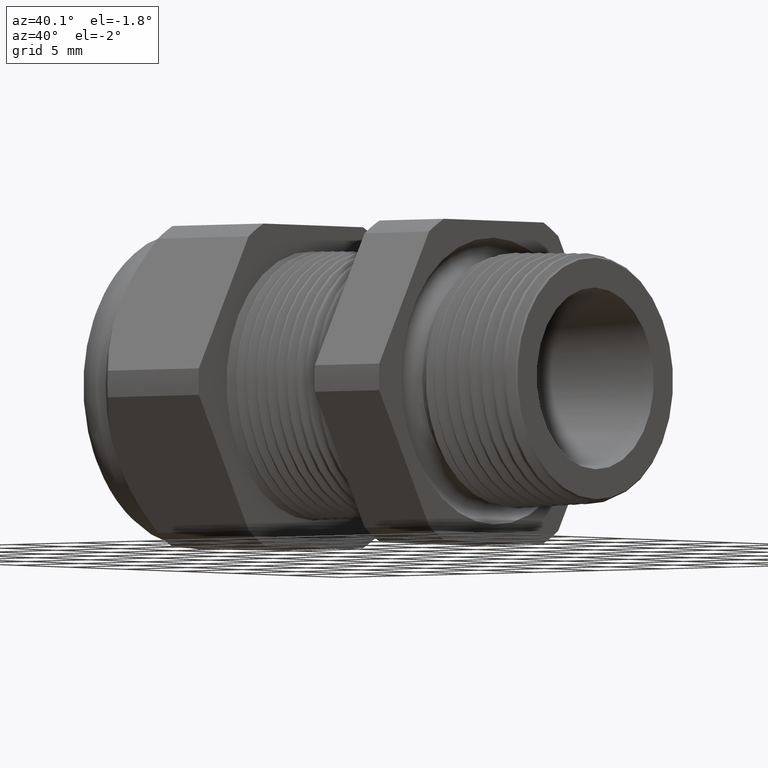
[diagram: clean part render]
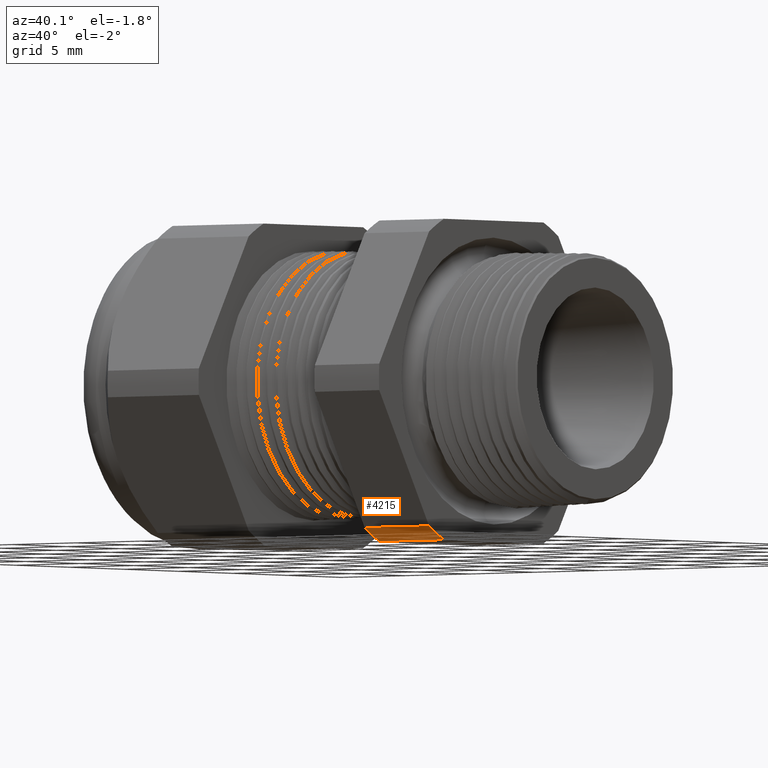
[diagram: same view with one face highlighted and labeled with its STEP entity id]
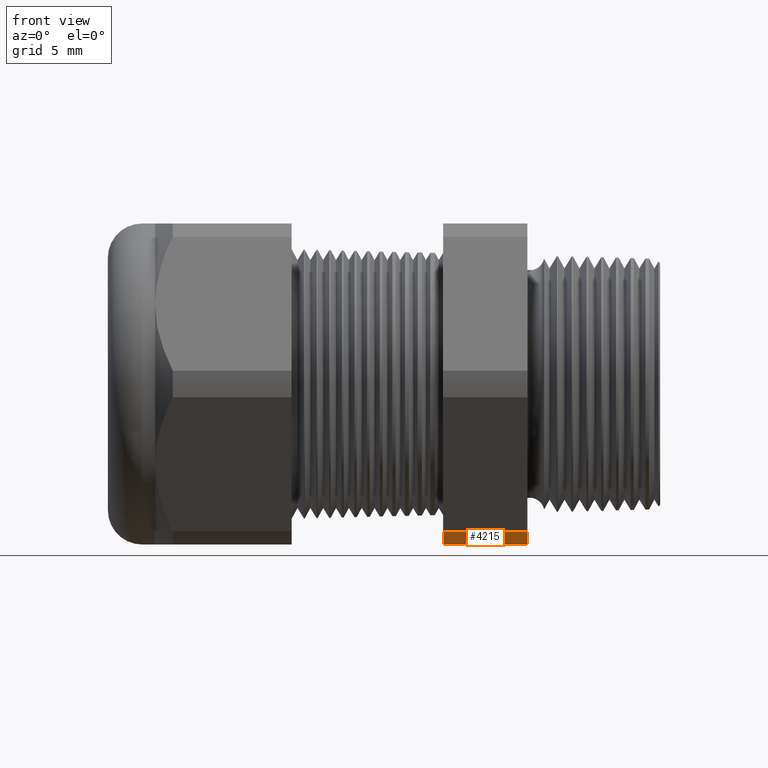
[diagram: same view with one face highlighted and labeled with its STEP entity id]
A machine part, auxiliary view. The second image highlights one B-rep face of the part: STEP entity #4215.
A second angle (front view) of the same face is appended — the face is thin or edge-on in the first view.
In plain terms, the highlighted cylindrical surface (partial cylindrical patch) has radius 10.5727 mm, axis along (-1, 0, 0).
Its self-contained STEP definition (entity closure, byte-faithful):
#2020 = CARTESIAN_POINT ( 'NONE',  ( -0.5068503937007873300, -0.1806628420566884200, -0.3750000000000001100 ) ) ;
#2026 = CARTESIAN_POINT ( 'NONE',  ( -0.3099999999999998300, -0.1806628420566884200, -0.3750000000000001100 ) ) ;
#2027 = DIRECTION ( 'NONE',  ( 0.0000000000000000000, 0.0000000000000000000, -1.000000000000000000 ) ) ;
#2028 = DIRECTION ( 'NONE',  ( 1.000000000000000000, 0.0000000000000000000, 0.0000000000000000000 ) ) ;
#2029 = CARTESIAN_POINT ( 'NONE',  ( -0.3100000000000000000, 0.0000000000000000000, 0.0000000000000000000 ) ) ;
#2030 = AXIS2_PLACEMENT_3D ( 'NONE', #2029, #2028, #2027 ) ;
#2031 = CIRCLE ( 'NONE', #2030, 0.4162500000000000100 ) ;
#2032 = CARTESIAN_POINT ( 'NONE',  ( -0.3099999999999998300, -0.2344281053908202100, -0.3439586107409880500 ) ) ;
#2095 = CARTESIAN_POINT ( 'NONE',  ( -0.5068503937007874400, 0.0000000000000000000, 0.0000000000000000000 ) ) ;
#2096 = AXIS2_PLACEMENT_3D ( 'NONE', #2095, #2158, #2157 ) ;
#2097 = CIRCLE ( 'NONE', #2096, 0.4162500000000000100 ) ;
#2098 = CARTESIAN_POINT ( 'NONE',  ( -0.5068503937007873300, -0.2344281053908202100, -0.3439586107409880500 ) ) ;
#2099 = DIRECTION ( 'NONE',  ( -1.000000000000000000, 0.0000000000000000000, 0.0000000000000000000 ) ) ;
#2100 = VECTOR ( 'NONE', #2099, 39.37007874015748100 ) ;
#2101 = CARTESIAN_POINT ( 'NONE',  ( 0.0000000000000000000, -0.2344281053908202100, -0.3439586107409880500 ) ) ;
#2102 = DIRECTION ( 'NONE',  ( 0.0000000000000000000, 0.0000000000000000000, 1.000000000000000000 ) ) ;
#2103 = DIRECTION ( 'NONE',  ( -1.000000000000000000, 0.0000000000000000000, 0.0000000000000000000 ) ) ;
#2104 = CARTESIAN_POINT ( 'NONE',  ( 0.0000000000000000000, 0.0000000000000000000, 0.0000000000000000000 ) ) ;
#2105 = AXIS2_PLACEMENT_3D ( 'NONE', #2104, #2103, #2102 ) ;
#2106 = LINE ( 'NONE', #2101, #2100 ) ;
#2107 = CYLINDRICAL_SURFACE ( 'NONE', #2105, 0.4162500000000000100 ) ;
#2108 = FACE_OUTER_BOUND ( 'NONE', #4160, .T. ) ;
#2131 = DIRECTION ( 'NONE',  ( -1.000000000000000000, 0.0000000000000000000, 0.0000000000000000000 ) ) ;
#2132 = VECTOR ( 'NONE', #2131, 39.37007874015748100 ) ;
#2133 = CARTESIAN_POINT ( 'NONE',  ( 0.0000000000000000000, -0.1806628420566884200, -0.3750000000000001100 ) ) ;
#2134 = LINE ( 'NONE', #2133, #2132 ) ;
#2157 = DIRECTION ( 'NONE',  ( 0.0000000000000000000, 0.0000000000000000000, 1.000000000000000000 ) ) ;
#2158 = DIRECTION ( 'NONE',  ( -1.000000000000000000, 0.0000000000000000000, 0.0000000000000000000 ) ) ;
#4152 = VERTEX_POINT ( 'NONE', #2032 ) ;
#4154 = EDGE_CURVE ( 'NONE', #4152, #4155, #2031, .T. ) ;
#4155 = VERTEX_POINT ( 'NONE', #2026 ) ;
#4159 = VERTEX_POINT ( 'NONE', #2020 ) ;
#4160 = EDGE_LOOP ( 'NONE', ( #4216, #4217, #4218, #4221 ) ) ;
#4215 = ADVANCED_FACE ( 'NONE', ( #2108 ), #2107, .T. ) ;
#4216 = ORIENTED_EDGE ( 'NONE', *, *, #4237, .F. ) ;
#4217 = ORIENTED_EDGE ( 'NONE', *, *, #4154, .F. ) ;
#4218 = ORIENTED_EDGE ( 'NONE', *, *, #4219, .T. ) ;
#4219 = EDGE_CURVE ( 'NONE', #4152, #4220, #2106, .T. ) ;
#4220 = VERTEX_POINT ( 'NONE', #2098 ) ;
#4221 = ORIENTED_EDGE ( 'NONE', *, *, #4222, .F. ) ;
#4222 = EDGE_CURVE ( 'NONE', #4159, #4220, #2097, .T. ) ;
#4237 = EDGE_CURVE ( 'NONE', #4155, #4159, #2134, .T. ) ;